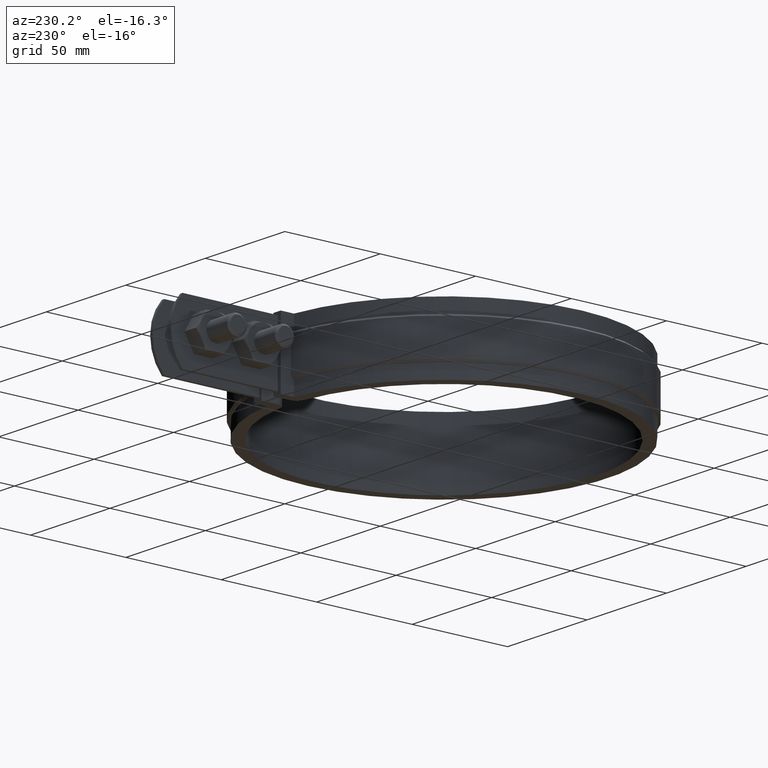
[diagram: clean part render]
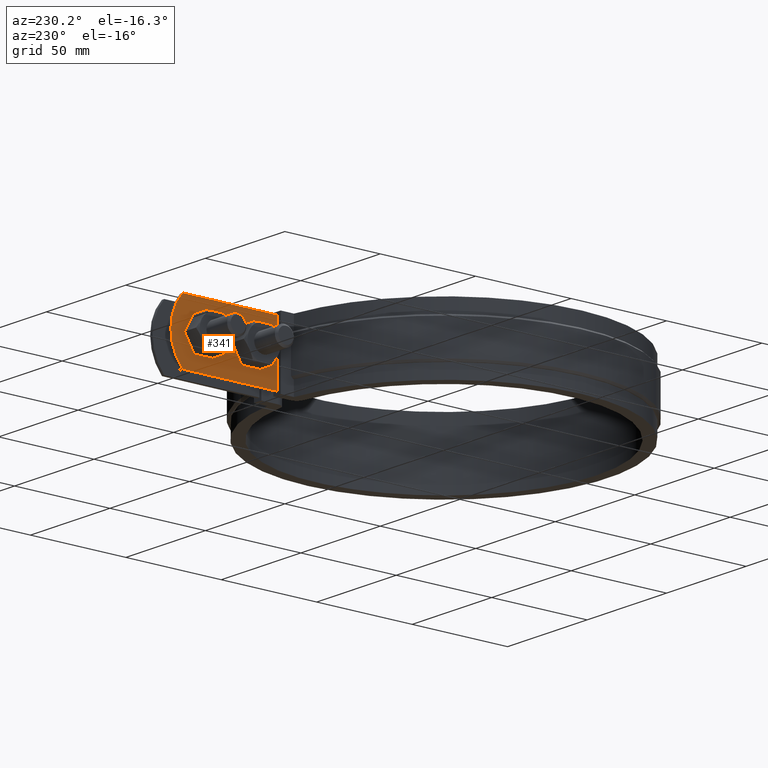
[diagram: same view with one face highlighted and labeled with its STEP entity id]
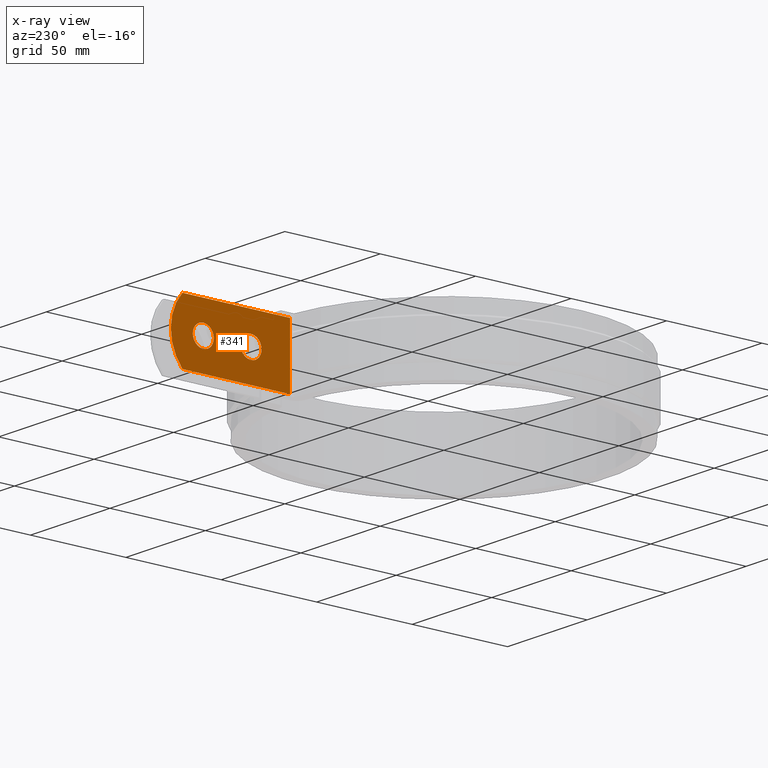
[diagram: x-ray of the same camera — body ghosted, the highlighted face saturated]
A machine part, auxiliary view. The second image highlights one B-rep face of the part: STEP entity #341.
The next image is the same camera in x-ray: the body ghosted, the highlighted face saturated — about 0% of this face is hidden behind the body in this view.
In plain terms, the highlighted planar face has unit normal (1, -0, 0).
Its self-contained STEP definition (entity closure, byte-faithful):
#341 = ADVANCED_FACE( '', ( #529, #530, #531 ), #532, .F. );
#529 = FACE_BOUND( '', #1237, .T. );
#530 = FACE_BOUND( '', #1238, .T. );
#531 = FACE_OUTER_BOUND( '', #1239, .T. );
#532 = PLANE( '', #1240 );
#1237 = EDGE_LOOP( '', ( #2848 ) );
#1238 = EDGE_LOOP( '', ( #2849 ) );
#1239 = EDGE_LOOP( '', ( #2850, #2851, #2852, #2853 ) );
#1240 = AXIS2_PLACEMENT_3D( '', #2854, #2855, #2856 );
#2848 = ORIENTED_EDGE( '', *, *, #4636, .F. );
#2849 = ORIENTED_EDGE( '', *, *, #4596, .F. );
#2850 = ORIENTED_EDGE( '', *, *, #4665, .T. );
#2851 = ORIENTED_EDGE( '', *, *, #4660, .T. );
#2852 = ORIENTED_EDGE( '', *, *, #4656, .F. );
#2853 = ORIENTED_EDGE( '', *, *, #4667, .F. );
#2854 = CARTESIAN_POINT( '', ( -6.49999999999999, 148.498345460003, 0.000000000000000 ) );
#2855 = DIRECTION( '', ( 1.00000000000000, -6.13499765894237E-017, 0.000000000000000 ) );
#2856 = DIRECTION( '', ( -6.13499765894237E-017, -1.00000000000000, 0.000000000000000 ) );
#4596 = EDGE_CURVE( '', #4986, #4986, #4987, .F. );
#4636 = EDGE_CURVE( '', #5056, #5056, #5057, .F. );
#4656 = EDGE_CURVE( '', #5089, #5091, #5092, .T. );
#4660 = EDGE_CURVE( '', #5096, #5091, #5097, .T. );
#4665 = EDGE_CURVE( '', #5102, #5096, #5103, .T. );
#4667 = EDGE_CURVE( '', #5102, #5089, #5105, .T. );
#4986 = VERTEX_POINT( '', #5874 );
#4987 = CIRCLE( '', #5875, 5.50000000000000 );
#5056 = VERTEX_POINT( '', #6634 );
#5057 = CIRCLE( '', #6635, 5.50000000000000 );
#5089 = VERTEX_POINT( '', #6739 );
#5091 = VERTEX_POINT( '', #6742 );
#5092 = LINE( '', #6743, #6744 );
#5096 = VERTEX_POINT( '', #6750 );
#5097 = LINE( '', #6751, #6752 );
#5102 = VERTEX_POINT( '', #6759 );
#5103 = LINE( '', #6760, #6761 );
#5105 = CIRCLE( '', #6764, 24.0000000000000 );
#5874 = CARTESIAN_POINT( '', ( -6.49999999999999, 111.998345460003, -16.0000000000000 ) );
#5875 = AXIS2_PLACEMENT_3D( '', #8571, #8572, #8573 );
#6634 = CARTESIAN_POINT( '', ( -6.49999999999999, 136.998345460003, -16.0000000000000 ) );
#6635 = AXIS2_PLACEMENT_3D( '', #8615, #8616, #8617 );
#6739 = CARTESIAN_POINT( '', ( -6.49999999999999, 142.386889280001, 0.000000000000000 ) );
#6742 = CARTESIAN_POINT( '', ( -6.49999999999999, 86.0305178410545, 0.000000000000000 ) );
#6743 = CARTESIAN_POINT( '', ( -6.49999999999999, 148.498345460003, 0.000000000000000 ) );
#6744 = VECTOR( '', #8650, 1000.00000000000 );
#6750 = CARTESIAN_POINT( '', ( -6.49999999999999, 86.0305178410545, -32.0000000000000 ) );
#6751 = CARTESIAN_POINT( '', ( -6.49999999999999, 86.0305178410545, 0.000000000000000 ) );
#6752 = VECTOR( '', #8656, 1000.00000000000 );
#6759 = CARTESIAN_POINT( '', ( -6.49999999999998, 142.386889280001, -32.0000000000000 ) );
#6760 = CARTESIAN_POINT( '', ( -6.49999999999999, 148.498345460003, -32.0000000000000 ) );
#6761 = VECTOR( '', #8665, 1000.00000000000 );
#6764 = AXIS2_PLACEMENT_3D( '', #8667, #8668, #8669 );
#8571 = CARTESIAN_POINT( '', ( -6.49999999999999, 106.498345460003, -16.0000000000000 ) );
#8572 = DIRECTION( '', ( 1.00000000000000, -6.13499765894237E-017, 0.000000000000000 ) );
#8573 = DIRECTION( '', ( 6.13499765894237E-017, 1.00000000000000, 0.000000000000000 ) );
#8615 = CARTESIAN_POINT( '', ( -6.49999999999999, 131.498345460003, -16.0000000000000 ) );
#8616 = DIRECTION( '', ( 1.00000000000000, -6.13499765894237E-017, 0.000000000000000 ) );
#8617 = DIRECTION( '', ( 6.13499765894237E-017, 1.00000000000000, 0.000000000000000 ) );
#8650 = DIRECTION( '', ( -6.13499765894237E-017, -1.00000000000000, 0.000000000000000 ) );
#8656 = DIRECTION( '', ( 0.000000000000000, 0.000000000000000, 1.00000000000000 ) );
#8665 = DIRECTION( '', ( -6.13499765894237E-017, -1.00000000000000, 0.000000000000000 ) );
#8667 = CARTESIAN_POINT( '', ( -6.49999999999998, 124.498345460003, -16.0000000000000 ) );
#8668 = DIRECTION( '', ( 1.00000000000000, -6.13499765894237E-017, 0.000000000000000 ) );
#8669 = DIRECTION( '', ( 6.13499765894237E-017, 1.00000000000000, 0.000000000000000 ) );